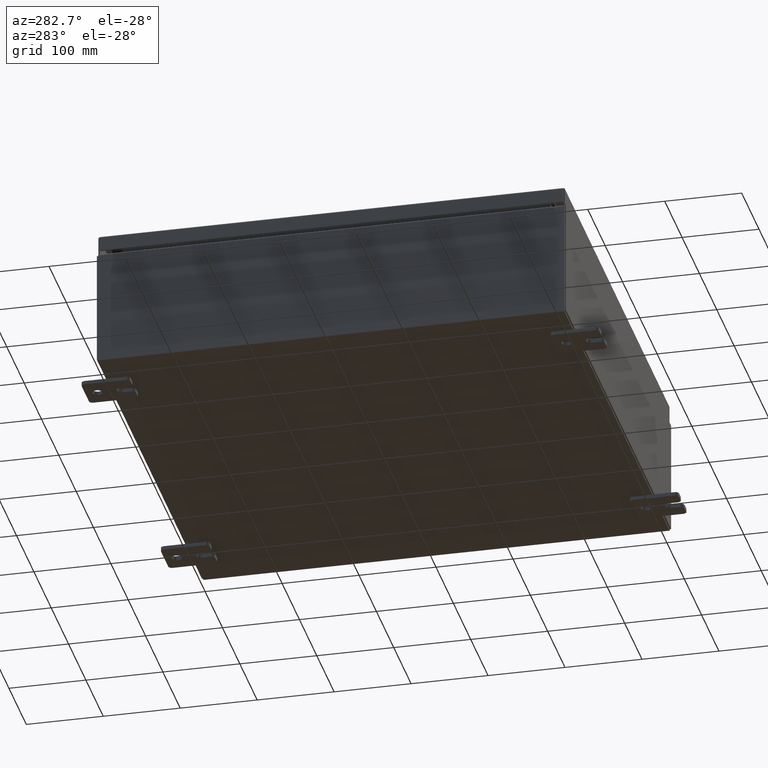
[diagram: clean part render]
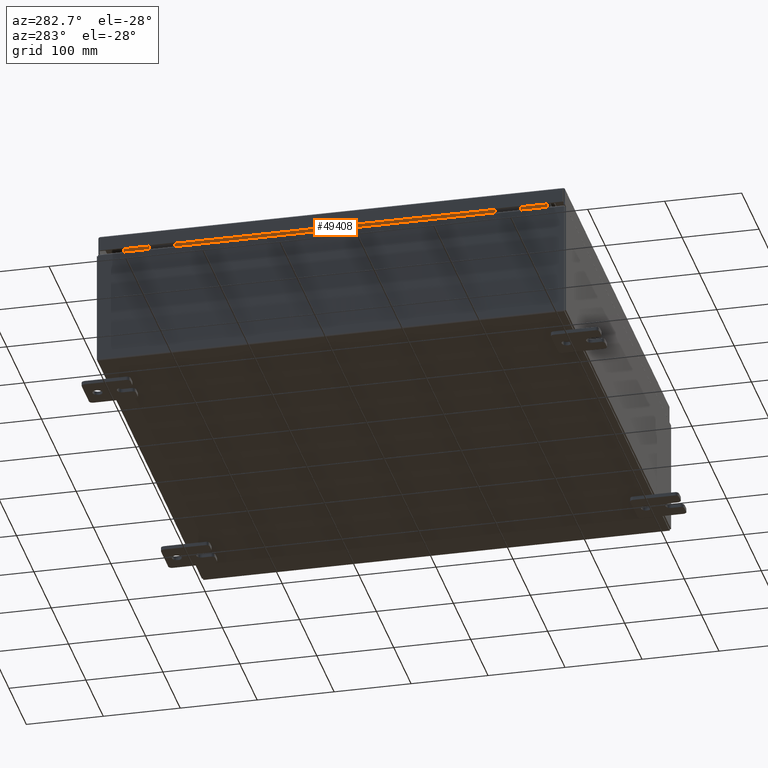
[diagram: same view with one face highlighted and labeled with its STEP entity id]
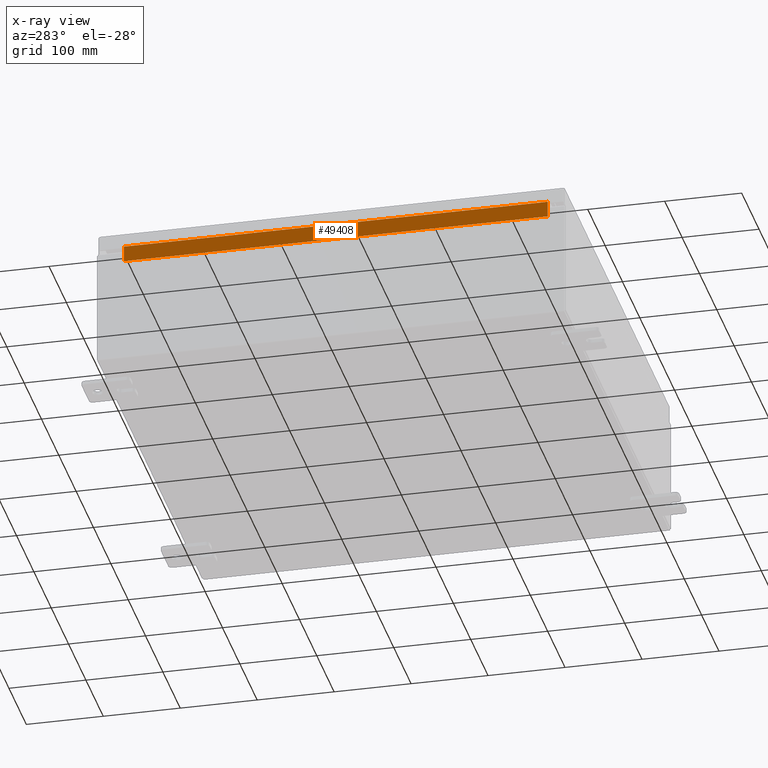
[diagram: x-ray of the same camera — body ghosted, the highlighted face saturated]
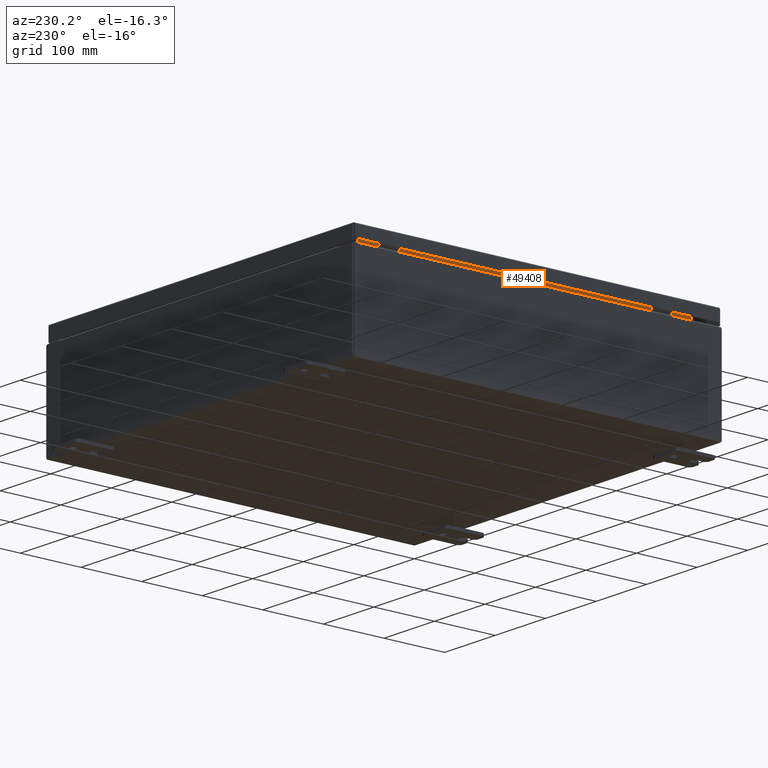
[diagram: same view with one face highlighted and labeled with its STEP entity id]
A machine part, auxiliary view. The second image highlights one B-rep face of the part: STEP entity #49408.
The next image is the same camera in x-ray: the body ghosted, the highlighted face saturated — about 0% of this face is hidden behind the body in this view.
A second angle (auxiliary view) of the same face is appended — the face is thin or edge-on in the first view.
In plain terms, the highlighted planar face has unit normal (-1, 0, -0).
Its self-contained STEP definition (entity closure, byte-faithful):
#880 = AXIS2_PLACEMENT_3D ( 'NONE', #17917, #22780, #56424 ) ;
#5069 = ORIENTED_EDGE ( 'NONE', *, *, #43713, .F. ) ;
#5517 = DIRECTION ( 'NONE',  ( -4.723826639860397600E-015, -0.0000000000000000000, 1.000000000000000000 ) ) ;
#5633 = CARTESIAN_POINT ( 'NONE',  ( -10.94970000000002700, 10.84374999999999800, 6.850600000000007100 ) ) ;
#6098 = CARTESIAN_POINT ( 'NONE',  ( -10.94970000000002800, -10.84374999999999600, 6.762900000000006400 ) ) ;
#9276 = ORIENTED_EDGE ( 'NONE', *, *, #57835, .F. ) ;
#12453 = LINE ( 'NONE', #5633, #36818 ) ;
#14186 = LINE ( 'NONE', #16896, #49673 ) ;
#15046 = CARTESIAN_POINT ( 'NONE',  ( -10.94970000000002700, 10.84374999999999800, 6.762900000000006400 ) ) ;
#16896 = CARTESIAN_POINT ( 'NONE',  ( -10.94970000000002800, 10.84374999999999600, 6.762900000000006400 ) ) ;
#17013 = VERTEX_POINT ( 'NONE', #62135 ) ;
#17917 = CARTESIAN_POINT ( 'NONE',  ( -10.94969999999999500, 0.0000000000000000000, -5.171729733005658200E-014 ) ) ;
#19560 = CARTESIAN_POINT ( 'NONE',  ( -10.94970000000002300, -10.84375000000000200, 5.938300000000007000 ) ) ;
#21125 = CARTESIAN_POINT ( 'NONE',  ( -10.94970000000002300, -10.84375000000000200, 5.925300000000007100 ) ) ;
#21345 = DIRECTION ( 'NONE',  ( 4.723826639860392000E-015, -0.0000000000000000000, -1.000000000000000000 ) ) ;
#22780 = DIRECTION ( 'NONE',  ( -1.000000000000000000, 2.380131657133450000E-031, -4.723826639860397600E-015 ) ) ;
#22898 = LINE ( 'NONE', #19560, #37353 ) ;
#23016 = ORIENTED_EDGE ( 'NONE', *, *, #52088, .F. ) ;
#24058 = EDGE_LOOP ( 'NONE', ( #5069, #9276, #41145, #23016 ) ) ;
#32354 = PLANE ( 'NONE',  #880 ) ;
#32577 = VECTOR ( 'NONE', #21345, 39.37007874015748100 ) ;
#35170 = FACE_OUTER_BOUND ( 'NONE', #24058, .T. ) ;
#35629 = LINE ( 'NONE', #21125, #32577 ) ;
#36161 = EDGE_CURVE ( 'NONE', #17013, #61706, #12453, .T. ) ;
#36818 = VECTOR ( 'NONE', #5517, 39.37007874015748100 ) ;
#37353 = VECTOR ( 'NONE', #53213, 39.37007874015748100 ) ;
#41070 = DIRECTION ( 'NONE',  ( -0.0000000000000000000, -1.000000000000000000, -0.0000000000000000000 ) ) ;
#41145 = ORIENTED_EDGE ( 'NONE', *, *, #36161, .F. ) ;
#41347 = CARTESIAN_POINT ( 'NONE',  ( -10.94970000000002300, -10.84375000000000200, 5.938300000000007000 ) ) ;
#43713 = EDGE_CURVE ( 'NONE', #49848, #56298, #35629, .T. ) ;
#49408 = ADVANCED_FACE ( 'NONE', ( #35170 ), #32354, .T. ) ;
#49673 = VECTOR ( 'NONE', #41070, 39.37007874015748100 ) ;
#49848 = VERTEX_POINT ( 'NONE', #6098 ) ;
#52088 = EDGE_CURVE ( 'NONE', #56298, #17013, #22898, .T. ) ;
#53213 = DIRECTION ( 'NONE',  ( 0.0000000000000000000, 1.000000000000000000, 0.0000000000000000000 ) ) ;
#56298 = VERTEX_POINT ( 'NONE', #41347 ) ;
#56424 = DIRECTION ( 'NONE',  ( -4.723826639860397600E-015, 0.0000000000000000000, 1.000000000000000000 ) ) ;
#57835 = EDGE_CURVE ( 'NONE', #61706, #49848, #14186, .T. ) ;
#61706 = VERTEX_POINT ( 'NONE', #15046 ) ;
#62135 = CARTESIAN_POINT ( 'NONE',  ( -10.94970000000002300, 10.84374999999999800, 5.938300000000007000 ) ) ;